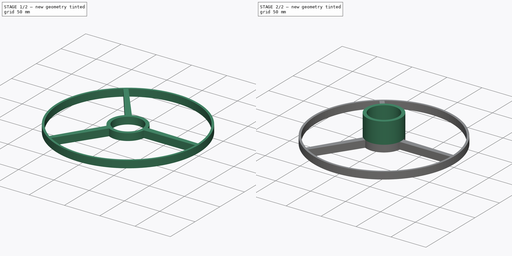
[diagram: build sequence overview — one tinted view per stage of 2, left to right]
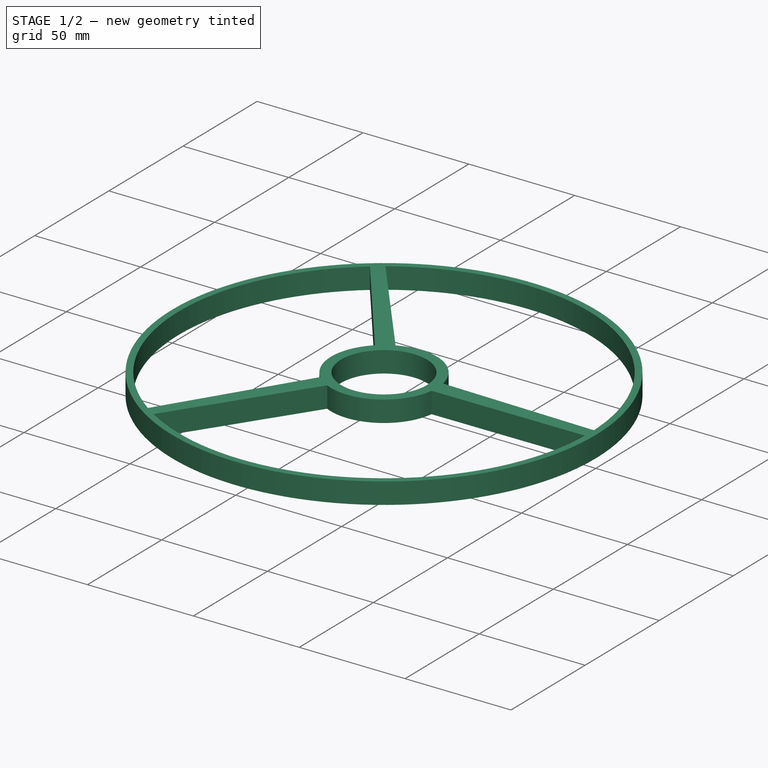
[diagram: stage 1 of 2 — iso view after this stage's code; geometry added in this stage tinted green]
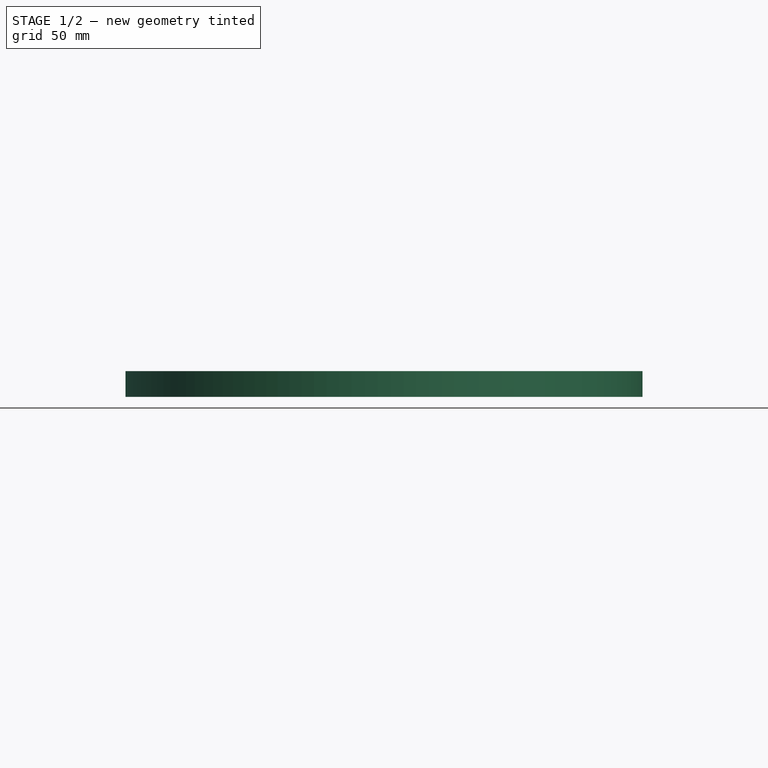
[diagram: stage 1 of 2 — front view after this stage's code; geometry added in this stage tinted green]
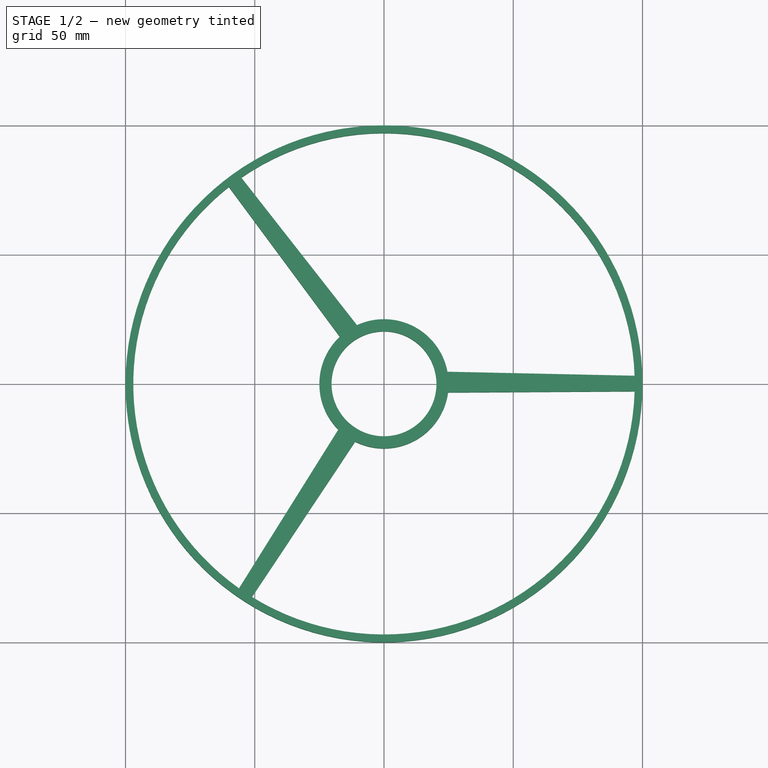
[diagram: stage 1 of 2 — top view after this stage's code; geometry added in this stage tinted green]
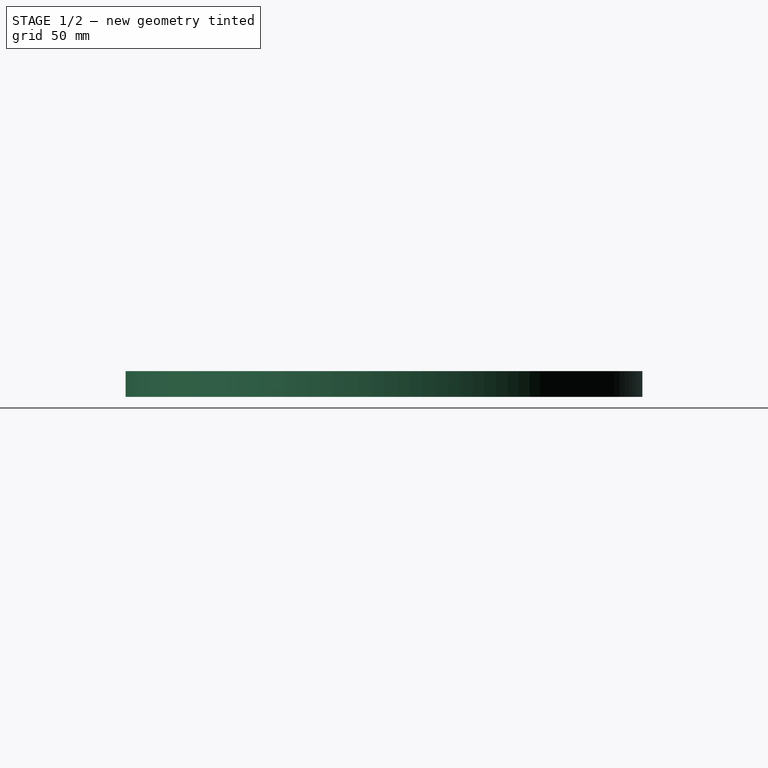
[diagram: stage 1 of 2 — right view after this stage's code; geometry added in this stage tinted green]
FCSTD DOCUMENT  (FreeCAD 0.19R23074 (Git))
Label: base1
License: All rights reserved
LicenseURL: http://en.wikipedia.org/wiki/All_rights_reserved
objects: Sketcher::SketchObject×2, PartDesign::Pad×2, PartDesign::Body×1
note: 7 computed .brp shape members not serialized (recipe doc carries the construction recipe); baked Part::Feature solids carry a one-line shape summary decoded from their .brp

FEATURE [Sketcher::SketchObject] Sketch
  MapMode = 5
  Support = -> [XY_Plane]
  sketch-geometry (14):
    g0: Circle CenterX=0 CenterY=0 CenterZ=0 NormalX=0 NormalY=0 NormalZ=1 AngleXU=0 Radius=100
    g1: ArcOfCircle CenterX=0 CenterY=0 CenterZ=0 NormalX=0 NormalY=0 NormalZ=1 AngleXU=0 Radius=97 StartAngle=0.0321846 EndAngle=2.17602
    g2: Circle CenterX=0 CenterY=0 CenterZ=0 NormalX=0 NormalY=0 NormalZ=1 AngleXU=0 Radius=20.3
    g3: ArcOfCircle CenterX=0 CenterY=0 CenterZ=0 NormalX=0 NormalY=0 NormalZ=1 AngleXU=0 Radius=25 StartAngle=0.187964 EndAngle=2.00192
    g4: LineSegment StartX=24.5597 StartY=4.67148 StartZ=0 EndX=96.9498 EndY=3.12137 EndZ=0
    g5: LineSegment StartX=24.7778 StartY=-3.32554 StartZ=0 EndX=96.9573 EndY=-2.87863 EndZ=0
    g6: LineSegment StartX=-11.1708 StartY=-22.3655 StartZ=0 EndX=-51.0948 EndY=-82.4519 EndZ=0
    g7: LineSegment StartX=-17.6636 StartY=-17.6918 StartZ=0 EndX=-56.0948 EndY=-79.1352 EndZ=0
    g8: ArcOfCircle CenterX=0 CenterY=0 CenterZ=0 NormalX=0 NormalY=0 NormalZ=1 AngleXU=0 Radius=25 StartAngle=4.24917 EndAngle=6.14977
    g9: ArcOfCircle CenterX=0 CenterY=0 CenterZ=0 NormalX=0 NormalY=0 NormalZ=1 AngleXU=0 Radius=97 StartAngle=4.15762 EndAngle=6.2535
    g10: LineSegment StartX=-10.4473 StartY=22.7124 StartZ=0 EndX=-55.1877 EndY=79.7704 EndZ=0
    g11: LineSegment StartX=-17.0868 StartY=18.2495 StartZ=0 EndX=-60.014 EndY=76.2058 EndZ=0
    g12: ArcOfCircle CenterX=0 CenterY=0 CenterZ=0 NormalX=0 NormalY=0 NormalZ=1 AngleXU=0 Radius=97 StartAngle=2.23788 EndAngle=4.09575
    g13: ArcOfCircle CenterX=0 CenterY=0 CenterZ=0 NormalX=0 NormalY=0 NormalZ=1 AngleXU=0 Radius=25 StartAngle=2.3233 EndAngle=3.92779
  constraints (34):
    c: Coincident(g0,g-1)
    c: Radius(g0) = 100
    c: Coincident(g1,g0)
    c: Radius(g1) = 97
    c: Coincident(g2,g0)
    c: Radius(g2) = 20.3
    c: Coincident(g3,g0)
    c: Radius(g3) = 25
    c: Coincident(g3,g4)
    c: Coincident(g8,g5)
    c: Coincident(g1,g4)
    c: Coincident(g9,g5)
    c: Equal(g3,g8)
    c: Coincident(g13,g7)
    c: Coincident(g8,g6)
    c: Coincident(g3,g8)
    c: Equal(g1,g9)
    c: Coincident(g12,g7)
    c: Coincident(g9,g6)
    c: Coincident(g1,g9)
    c: Distance(g13,g6) = 8
    c: Distance(g3,g5) = 8
    c: Distance(g6,g12) = 6
    c: Equal(g1,g12)
    c: Coincident(g1,g10)
    c: Coincident(g12,g11)
    c: Coincident(g1,g12)
    c: Equal(g3,g13)
    c: Coincident(g3,g10)
    c: Coincident(g13,g11)
    c: Coincident(g3,g13)
    c: Distance(g11,g3) = 8
    c: Distance(g1,g11) = 6
    c: Distance(g5,g1) = 6
FEATURE [PartDesign::Pad] Pad
  Direction = (1,1,1)
  Length = 10
  Length2 = 100
  Profile = -> Sketch
  Type = 0
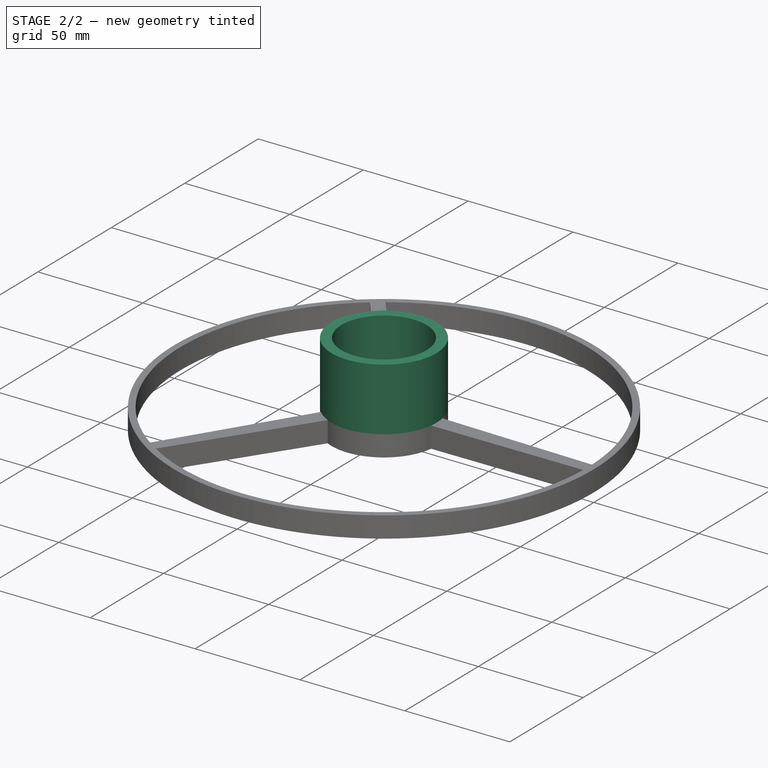
[diagram: stage 2 of 2 — iso view after this stage's code; geometry added in this stage tinted green]
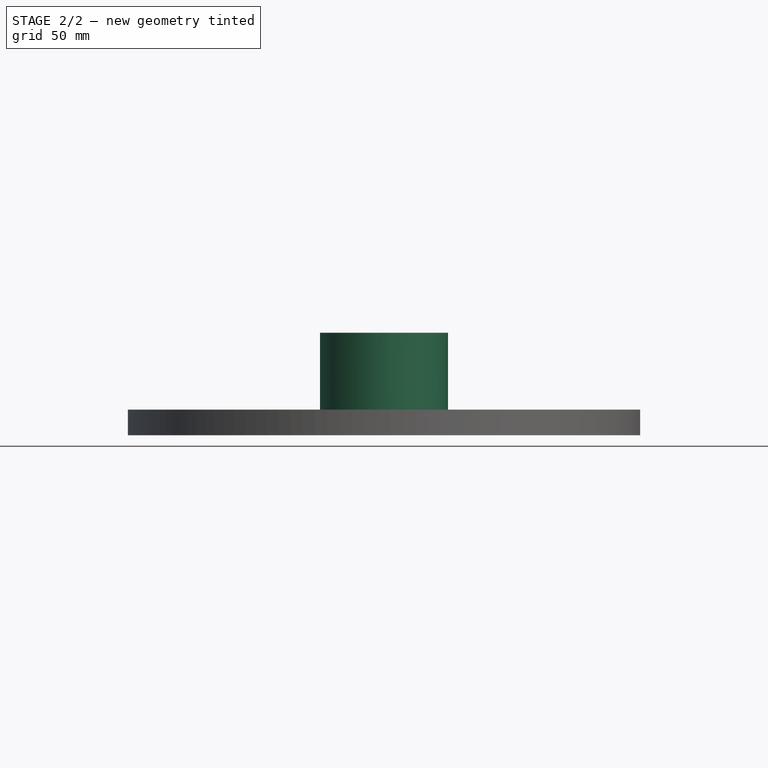
[diagram: stage 2 of 2 — front view after this stage's code; geometry added in this stage tinted green]
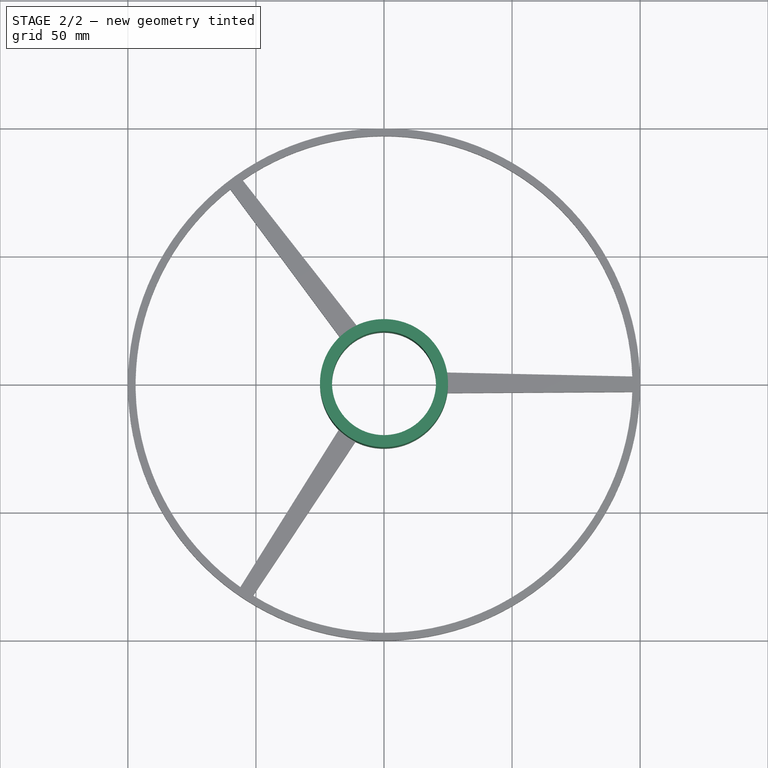
[diagram: stage 2 of 2 — top view after this stage's code; geometry added in this stage tinted green]
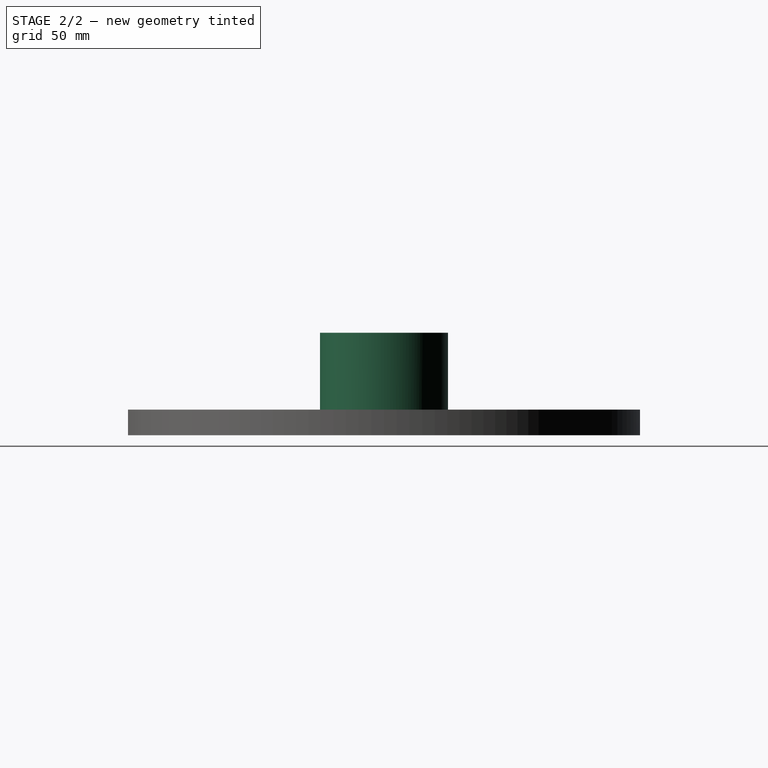
[diagram: stage 2 of 2 — right view after this stage's code; geometry added in this stage tinted green]
FEATURE [Sketcher::SketchObject] Sketch001
  MapMode = 5
  Placement = pos=(0,0,10) rot=(0,0,1;0rad)
  Support = -> [Pad]
  sketch-geometry (2):
    g0: Circle CenterX=0 CenterY=0 CenterZ=0 NormalX=0 NormalY=0 NormalZ=1 AngleXU=0 Radius=25
    g1: Circle CenterX=0 CenterY=0 CenterZ=0 NormalX=0 NormalY=0 NormalZ=1 AngleXU=0 Radius=20.3
  constraints (4):
    c: Coincident(g0,g-1)
    c: Coincident(g1,g0)
    c: Radius(g1) = 20.3
    c: Radius(g0) = 25
FEATURE [PartDesign::Pad] Pad001
  BaseFeature = -> Pad
  Direction = (1,1,1)
  Length = 30
  Length2 = 100
  Profile = -> Sketch001
  Type = 0
FEATURE [PartDesign::Body] Body
  Group = -> [Sketch,Pad,Sketch001,Pad001]
  Origin = -> Origin
  Tip = -> Pad001
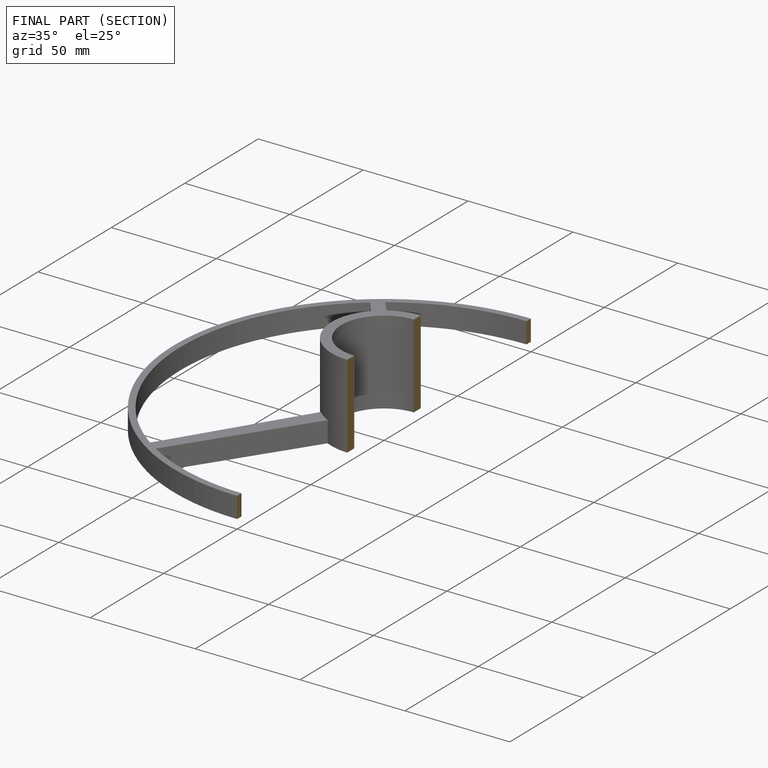
[diagram: finished part — half-section view (interior)]
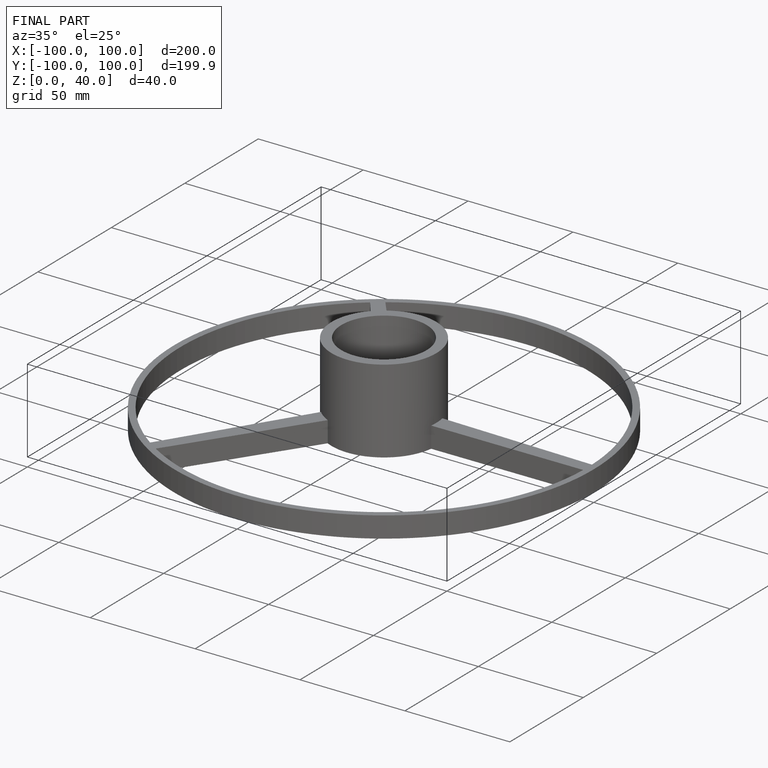
[diagram: finished part — iso view with bounding-box wireframe]
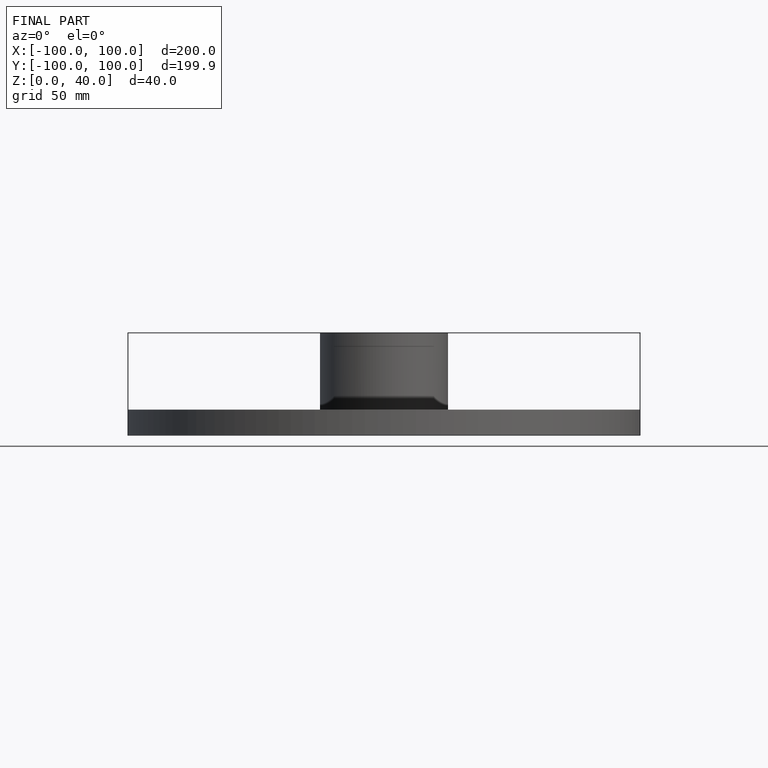
[diagram: finished part — front view with bounding-box wireframe]
